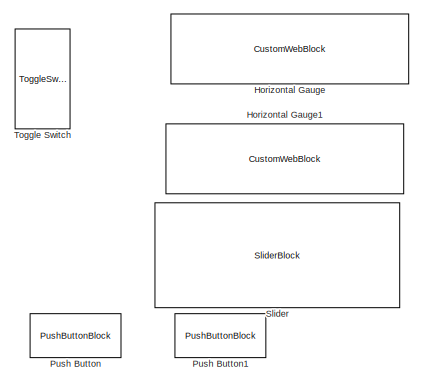
[diagram: root canvas - part 1/2, top left region]
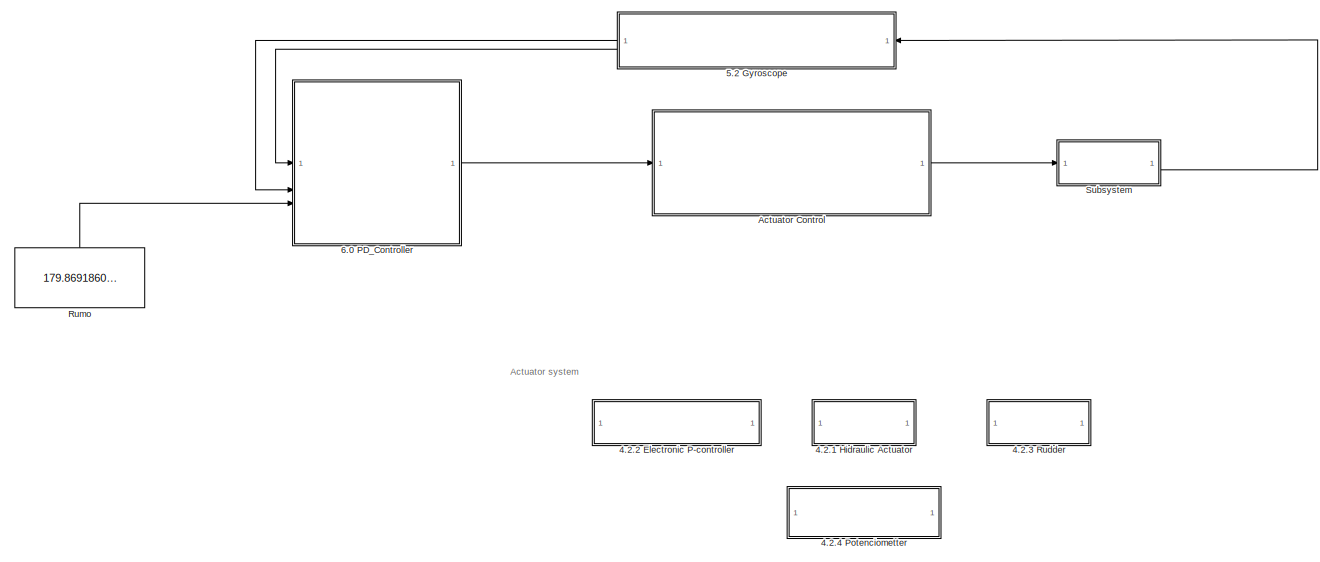
[diagram: root canvas - part 2/2, full width, bottom band]
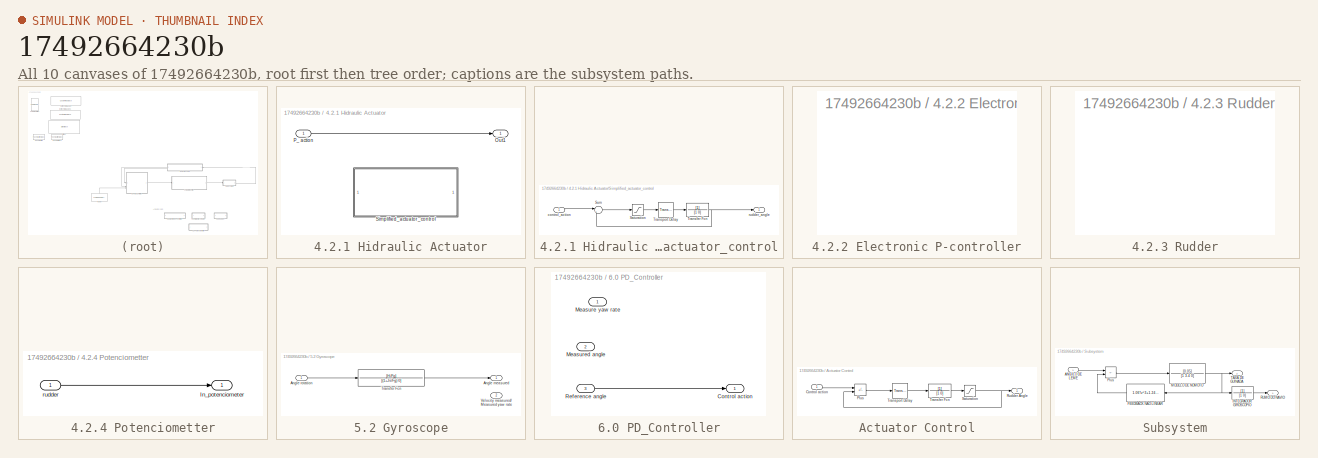
[diagram: thumbnail index - all 10 canvases of the model, root first then tree order]
MODEL slx_17492664230b
KIND model
CONFIG AbsTol = auto
CONFIG EnableMultiTasking = off
CONFIG FixedStep = auto
CONFIG MaxStep = auto
CONFIG MinStep = auto
CONFIG RelTol = 1e-3
CONFIG SampleTimeConstraint = Unconstrained
CONFIG SolverName = FixedStepAuto
CONFIG StartTime = 0.0
CONFIG StopTime = 100
BLOCK [SubSystem] 4.2.1 Hidraulic Actuator
  Commented = on
BLOCK [Outport] 4.2.1 Hidraulic Actuator/Out1
BLOCK [Inport] 4.2.1 Hidraulic Actuator/P_ action
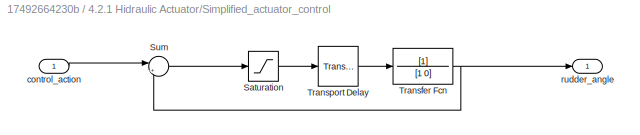
BLOCK [SubSystem] 4.2.1 Hidraulic Actuator/Simplified_actuator_control
BLOCK [Saturate] 4.2.1 Hidraulic Actuator/Simplified_actuator_control/Saturation
  LowerLimit = 35
  UpperLimit = 35
BLOCK [Sum] 4.2.1 Hidraulic Actuator/Simplified_actuator_control/Sum
  Inputs = |+-
BLOCK [TransferFcn] 4.2.1 Hidraulic Actuator/Simplified_actuator_control/Transfer Fcn
  Denominator = [1 0]
BLOCK [TransportDelay] 4.2.1 Hidraulic Actuator/Simplified_actuator_control/Transport Delay
BLOCK [Inport] 4.2.1 Hidraulic Actuator/Simplified_actuator_control/control_action
BLOCK [Outport] 4.2.1 Hidraulic Actuator/Simplified_actuator_control/rudder_angle
BLOCK [SubSystem] 4.2.2 Electronic P-controller
  Commented = on
BLOCK [SubSystem] 4.2.3 Rudder
  Commented = on
BLOCK [SubSystem] 4.2.4 Potenciometter
  Commented = on
  NameLocation = top
BLOCK [Outport] 4.2.4 Potenciometter/In_potenciometer
BLOCK [Inport] 4.2.4 Potenciometter/rudder
BLOCK [SubSystem] 5.2 Gyroscope
  NameLocation = top
BLOCK [Outport] 5.2 Gyroscope/Angle measured
BLOCK [Inport] 5.2 Gyroscope/Angle rotation
BLOCK [TransferFcn] 5.2 Gyroscope/Transfer Fcn
  Denominator = [(1+Js/Fg) 0]
  Numerator = [H/Fg]
BLOCK [Outport] 5.2 Gyroscope/Velocity measured//Measured yaw rate
  Port = 2
BLOCK [SubSystem] 6.0 PD_Controller
BLOCK [Outport] 6.0 PD_Controller/Control action
BLOCK [Inport] 6.0 PD_Controller/Measure yaw rate
  NameLocation = left
BLOCK [Inport] 6.0 PD_Controller/Measured angle
  Port = 2
BLOCK [Inport] 6.0 PD_Controller/Reference angle
  Port = 3
BLOCK [SubSystem] Actuator Control
BLOCK [Inport] Actuator Control/Control action
BLOCK [Sum] Actuator Control/Plus
  IconShape = rectangular
  Inputs = +-
BLOCK [Outport] Actuator Control/Rudder Angle
BLOCK [Saturate] Actuator Control/Saturation
  LowerLimit = -30
  UpperLimit = 30
BLOCK [TransferFcn] Actuator Control/Transfer Fcn
  Denominator = [1 0]
BLOCK [TransportDelay] Actuator Control/Transport Delay
BLOCK [CustomWebBlock] Horizontal Gauge
  Configuration = {"type":"LinearGauge","settings":{"BindingType":"signal","fixedAspectRatio":"on","orientation":"horizontal"},"components":[{"name":"LinearScaleComponent","settings":{"bounds":{"max":100,"min":0,"tickInterval":"auto"},"labelColor":[250,245,199],"labelFont":{"font":"Arial","fontSize":12},"labelOffset":0.05,"labelTransparency":1,"needleImage":{"size":[21,75],"src":"data:image/svg+xml;base64,PHN2ZyB4b...<+5557ch>
  ShowInitialText = on
BLOCK [CustomWebBlock] Horizontal Gauge1
  Configuration = {"type":"LinearGauge","settings":{"BindingType":"signal","fixedAspectRatio":"on","orientation":"horizontal"},"components":[{"name":"LinearScaleComponent","settings":{"bounds":{"max":100,"min":0,"tickInterval":"auto"},"labelColor":[250,245,199],"labelFont":{"font":"Arial","fontSize":12},"labelOffset":0.05,"labelTransparency":1,"needleImage":{"size":[21,75],"src":"data:image/svg+xml;base64,PHN2ZyB4b...<+5557ch>
  ShowInitialText = on
BLOCK [PushButtonBlock] Push Button
BLOCK [PushButtonBlock] Push Button1
BLOCK [Constant] Rumo
  NameLocation = right
  Value = 179.8691860465116
  VectorParams1D = off
BLOCK [SliderBlock] Slider
  ScaleMax = 360
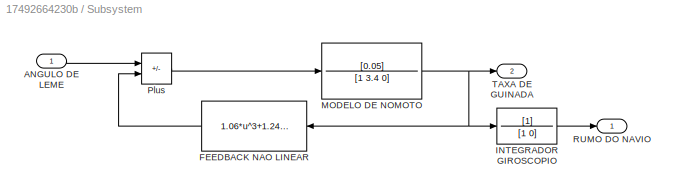
BLOCK [SubSystem] Subsystem
BLOCK [Inport] Subsystem/ANGULO DE LEME
BLOCK [Fcn] Subsystem/FEEDBACK NAO LINEAR
  Expr = 1.06*u^3+1.24*u
  NameLocation = top
BLOCK [TransferFcn] Subsystem/INTEGRADOR GIROSCOPIO
  Denominator = [1 0]
BLOCK [TransferFcn] Subsystem/MODELO DE NOMOTO
  Denominator = [1 3.4 0]
  NameLocation = top
  Numerator = [0.05]
BLOCK [Sum] Subsystem/Plus
  IconShape = rectangular
  Inputs = +-
BLOCK [Outport] Subsystem/RUMO DO NAVIO
  NameLocation = top
BLOCK [Outport] Subsystem/TAXA DE GUINADA
  NameLocation = right
  Port = 2
BLOCK [ToggleSwitchBlock] Toggle Switch
ANNOTATION (root): Actuator system
LINE 4.2.1 Hidraulic Actuator/P_ action:1 -> 4.2.1 Hidraulic Actuator/Out1:1
LINE 4.2.1 Hidraulic Actuator/Simplified_actuator_control/Saturation:1 -> 4.2.1 Hidraulic Actuator/Simplified_actuator_control/Transport Delay:1
LINE 4.2.1 Hidraulic Actuator/Simplified_actuator_control/Sum:1 -> 4.2.1 Hidraulic Actuator/Simplified_actuator_control/Saturation:1
NET 4.2.1 Hidraulic Actuator/Simplified_actuator_control/Transfer Fcn:1 -> 4.2.1 Hidraulic Actuator/Simplified_actuator_control/Sum:2, 4.2.1 Hidraulic Actuator/Simplified_actuator_control/rudder_angle:1
LINE 4.2.1 Hidraulic Actuator/Simplified_actuator_control/Transport Delay:1 -> 4.2.1 Hidraulic Actuator/Simplified_actuator_control/Transfer Fcn:1
LINE 4.2.1 Hidraulic Actuator/Simplified_actuator_control/control_action:1 -> 4.2.1 Hidraulic Actuator/Simplified_actuator_control/Sum:1
LINE 4.2.4 Potenciometter/rudder:1 -> 4.2.4 Potenciometter/In_potenciometer:1
LINE 5.2 Gyroscope/Angle rotation:1 -> 5.2 Gyroscope/Transfer Fcn:1
LINE 5.2 Gyroscope/Transfer Fcn:1 -> 5.2 Gyroscope/Angle measured:1
LINE 5.2 Gyroscope:1 -> 6.0 PD_Controller:2
LINE 5.2 Gyroscope:2 -> 6.0 PD_Controller:1
LINE 6.0 PD_Controller/Reference angle:1 -> 6.0 PD_Controller/Control action:1
LINE 6.0 PD_Controller:1 -> Actuator Control:1
LINE Actuator Control/Control action:1 -> Actuator Control/Plus:1
LINE Actuator Control/Plus:1 -> Actuator Control/Transport Delay:1
NET Actuator Control/Saturation:1 -> Actuator Control/Plus:2, Actuator Control/Rudder Angle:1
LINE Actuator Control/Transfer Fcn:1 -> Actuator Control/Saturation:1
LINE Actuator Control/Transport Delay:1 -> Actuator Control/Transfer Fcn:1
LINE Actuator Control:1 -> Subsystem:1
LINE Rumo:1 -> 6.0 PD_Controller:3
LINE Subsystem/ANGULO DE LEME:1 -> Subsystem/Plus:1
LINE Subsystem/FEEDBACK NAO LINEAR:1 -> Subsystem/Plus:2
LINE Subsystem/INTEGRADOR GIROSCOPIO:1 -> Subsystem/RUMO DO NAVIO:1
NET Subsystem/MODELO DE NOMOTO:1 -> Subsystem/FEEDBACK NAO LINEAR:1, Subsystem/INTEGRADOR GIROSCOPIO:1, Subsystem/TAXA DE GUINADA:1
LINE Subsystem/Plus:1 -> Subsystem/MODELO DE NOMOTO:1
LINE Subsystem:2 -> 5.2 Gyroscope:1
note: NET lines group one-source signal fan-out (src -> all destinations, sorted); 1:1 wires keep LINE
